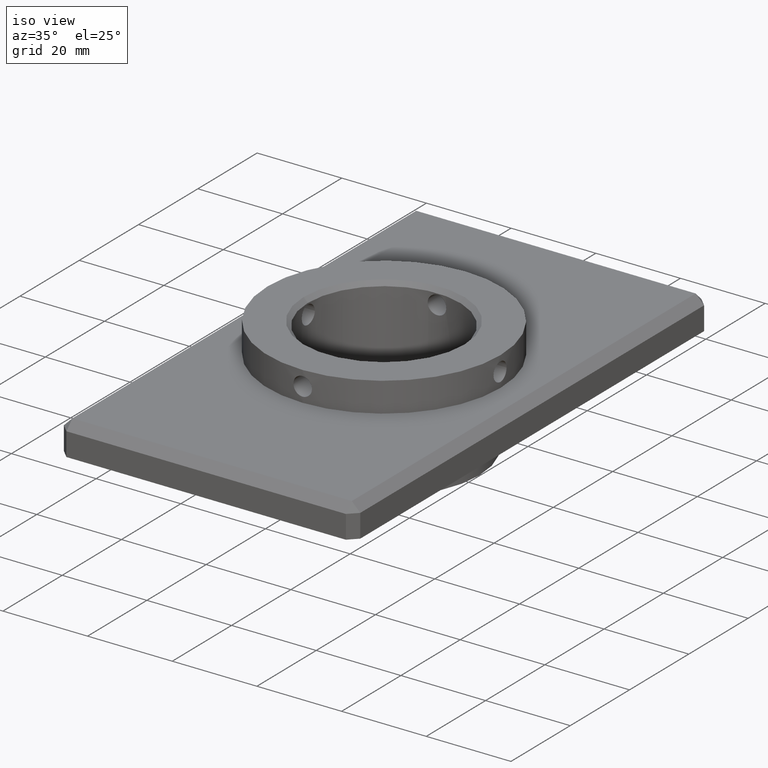
[diagram: clean part render]
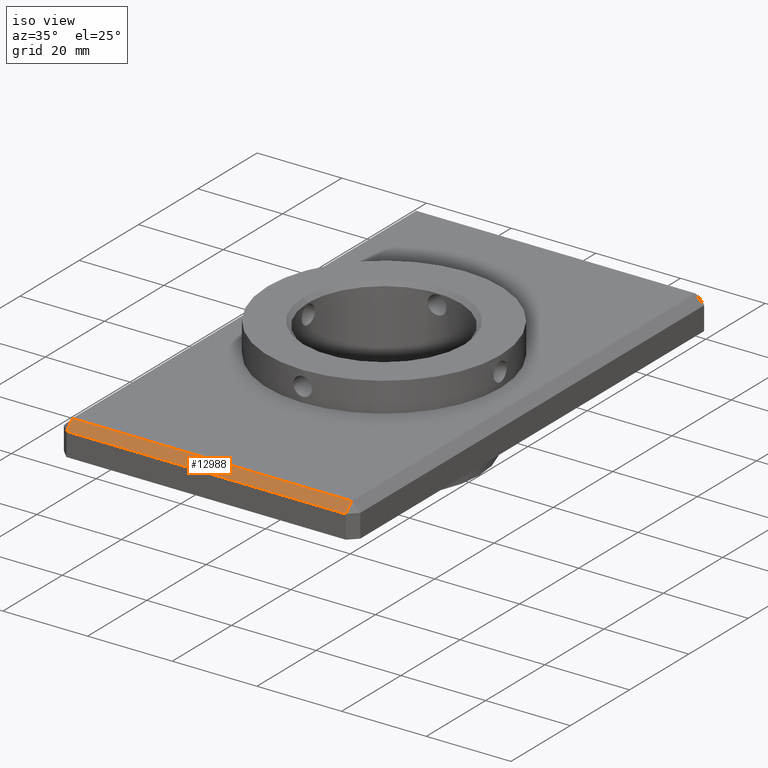
[diagram: same view with one face highlighted and labeled with its STEP entity id]
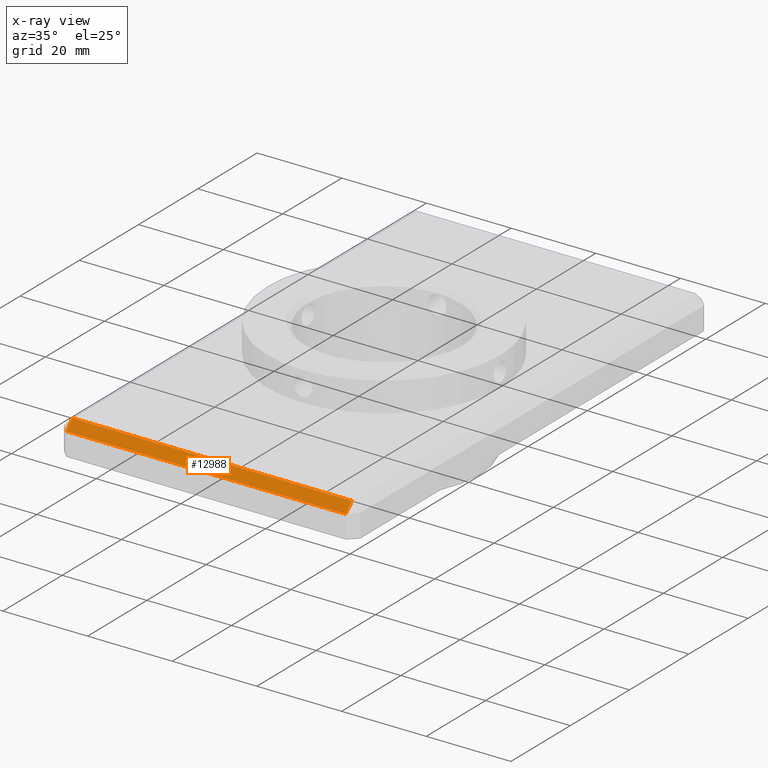
[diagram: x-ray of the same camera — body ghosted, the highlighted face saturated]
A machine part, iso view. The second image highlights one B-rep face of the part: STEP entity #12988.
The next image is the same camera in x-ray: the body ghosted, the highlighted face saturated — about 0% of this face is hidden behind the body in this view.
In plain terms, the highlighted planar face has unit normal (-0, -0.7071, 0.7071).
Its self-contained STEP definition (entity closure, byte-faithful):
#736 = CARTESIAN_POINT ( 'NONE',  ( 32.99999999999997868, -60.00000000000002132, 3.999999999999976463 ) ) ;
#1205 = VERTEX_POINT ( 'NONE', #10018 ) ;
#1347 = CARTESIAN_POINT ( 'NONE',  ( 34.99999999999999289, -58.00000000000000000, 5.999999999999986677 ) ) ;
#1538 = PLANE ( 'NONE',  #12388 ) ;
#1594 = CARTESIAN_POINT ( 'NONE',  ( -35.00000000000000711, -59.99999999999999289, 3.999999999999977351 ) ) ;
#3541 = FACE_OUTER_BOUND ( 'NONE', #7002, .T. ) ;
#3593 = DIRECTION ( 'NONE',  ( -6.730369402342430217E-16, -0.7071067811865483499, -0.7071067811865467956 ) ) ;
#3619 = VECTOR ( 'NONE', #5952, 1000.000000000000000 ) ;
#3847 = VERTEX_POINT ( 'NONE', #15245 ) ;
#4234 = ORIENTED_EDGE ( 'NONE', *, *, #16858, .F. ) ;
#5595 = VECTOR ( 'NONE', #3593, 1000.000000000000000 ) ;
#5952 = DIRECTION ( 'NONE',  ( -1.000000000000000000, 3.965082230804129727E-16, -1.094764425253763337E-47 ) ) ;
#6237 = CARTESIAN_POINT ( 'NONE',  ( 32.99999999999997868, -60.00000000000002132, 3.999999999999977351 ) ) ;
#6267 = VECTOR ( 'NONE', #7904, 1000.000000000000000 ) ;
#7002 = EDGE_LOOP ( 'NONE', ( #12206, #4234, #9922, #15871 ) ) ;
#7057 = VERTEX_POINT ( 'NONE', #8108 ) ;
#7333 = DIRECTION ( 'NONE',  ( 1.000000000000000000, -3.965082230804129727E-16, 1.094764425253763337E-47 ) ) ;
#7391 = VERTEX_POINT ( 'NONE', #6237 ) ;
#7823 = LINE ( 'NONE', #17690, #5595 ) ;
#7904 = DIRECTION ( 'NONE',  ( 3.076740298213675285E-15, -0.7071067811865483499, -0.7071067811865467956 ) ) ;
#8108 = CARTESIAN_POINT ( 'NONE',  ( 32.99999999999997158, -58.00000000000000000, 5.999999999999986677 ) ) ;
#9468 = LINE ( 'NONE', #1347, #11232 ) ;
#9922 = ORIENTED_EDGE ( 'NONE', *, *, #13590, .F. ) ;
#10018 = CARTESIAN_POINT ( 'NONE',  ( -32.99999999999999289, -57.99999999999997868, 5.999999999999986677 ) ) ;
#10469 = LINE ( 'NONE', #736, #6267 ) ;
#11232 = VECTOR ( 'NONE', #12660, 1000.000000000000000 ) ;
#12206 = ORIENTED_EDGE ( 'NONE', *, *, #13228, .T. ) ;
#12388 = AXIS2_PLACEMENT_3D ( 'NONE', #17083, #15835, #7333 ) ;
#12660 = DIRECTION ( 'NONE',  ( 1.000000000000000000, -3.965082230804129727E-16, 1.094764425253763337E-47 ) ) ;
#12988 = ADVANCED_FACE ( 'NONE', ( #3541 ), #1538, .T. ) ;
#13228 = EDGE_CURVE ( 'NONE', #1205, #3847, #7823, .T. ) ;
#13590 = EDGE_CURVE ( 'NONE', #7057, #7391, #10469, .T. ) ;
#15245 = CARTESIAN_POINT ( 'NONE',  ( -32.99999999999999289, -59.99999999999999289, 3.999999999999977351 ) ) ;
#15835 = DIRECTION ( 'NONE',  ( -2.803736533363880405E-16, -0.7071067811865467956, 0.7071067811865483499 ) ) ;
#15871 = ORIENTED_EDGE ( 'NONE', *, *, #18373, .F. ) ;
#16858 = EDGE_CURVE ( 'NONE', #7391, #3847, #16955, .T. ) ;
#16955 = LINE ( 'NONE', #1594, #3619 ) ;
#17083 = CARTESIAN_POINT ( 'NONE',  ( -35.00000000000000711, -59.99999999999999289, 3.999999999999976019 ) ) ;
#17690 = CARTESIAN_POINT ( 'NONE',  ( -32.99999999999999289, -59.99999999999999289, 3.999999999999976463 ) ) ;
#18373 = EDGE_CURVE ( 'NONE', #1205, #7057, #9468, .T. ) ;